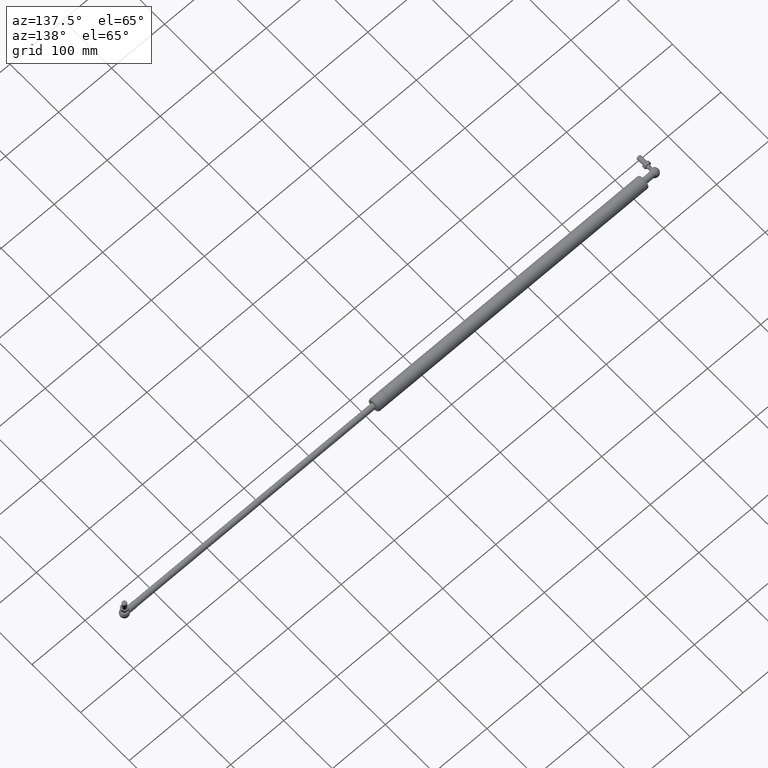
[diagram: clean part render]
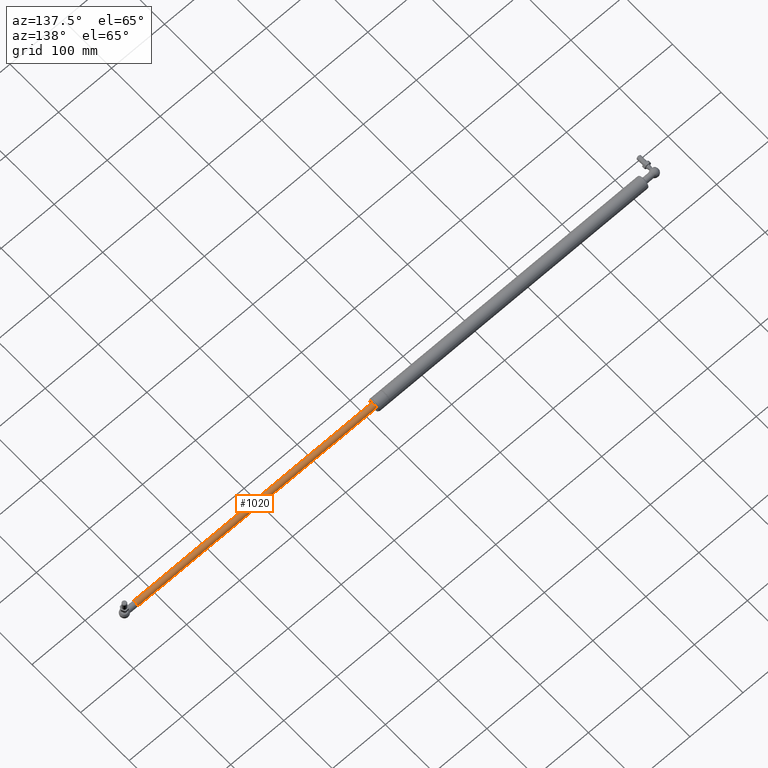
[diagram: same view with one face highlighted and labeled with its STEP entity id]
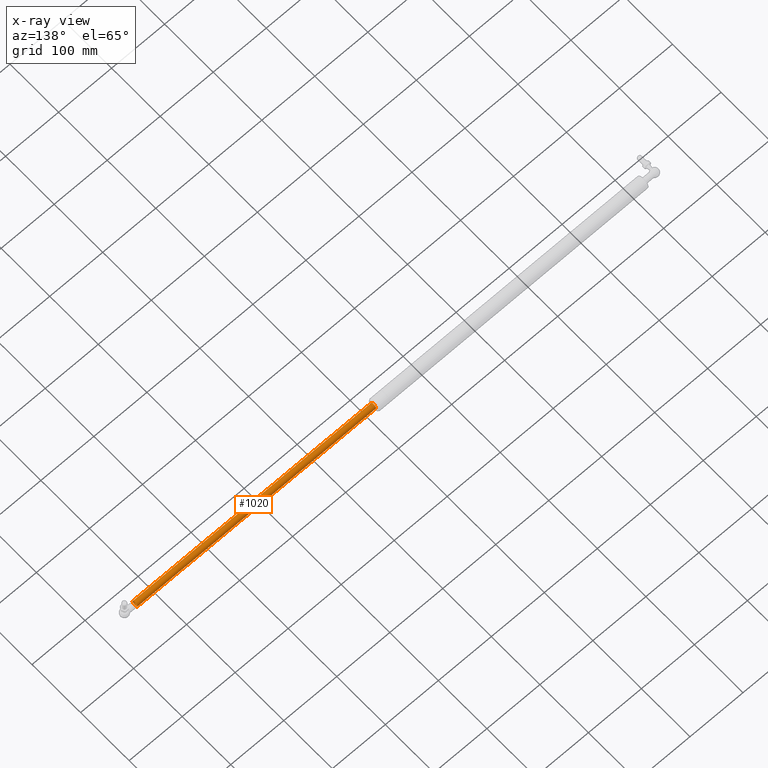
[diagram: x-ray of the same camera — body ghosted, the highlighted face saturated]
A machine part, auxiliary view. The second image highlights one B-rep face of the part: STEP entity #1020.
The next image is the same camera in x-ray: the body ghosted, the highlighted face saturated — about 0% of this face is hidden behind the body in this view.
In plain terms, the highlighted cylindrical surface (bore or boss wall) has radius 5 mm, axis along (1, -0, 0).
Its self-contained STEP definition (entity closure, byte-faithful):
#228=FACE_BOUND('',#367,.T.);
#258=CYLINDRICAL_SURFACE('',#1116,5.00000000000002);
#283=FACE_OUTER_BOUND('',#366,.T.);
#366=EDGE_LOOP('',(#751));
#367=EDGE_LOOP('',(#752));
#455=CIRCLE('',#1112,5.);
#457=CIRCLE('',#1117,5.00000000000003);
#506=VERTEX_POINT('',#1496);
#508=VERTEX_POINT('',#1503);
#605=EDGE_CURVE('',#506,#506,#455,.T.);
#607=EDGE_CURVE('',#508,#508,#457,.T.);
#751=ORIENTED_EDGE('',*,*,#607,.F.);
#752=ORIENTED_EDGE('',*,*,#605,.T.);
#1020=ADVANCED_FACE('',(#283,#228),#258,.T.);
#1112=AXIS2_PLACEMENT_3D('',#1497,#1258,#1259);
#1116=AXIS2_PLACEMENT_3D('',#1502,#1266,#1267);
#1117=AXIS2_PLACEMENT_3D('',#1504,#1268,#1269);
#1258=DIRECTION('center_axis',(-1.,0.,0.));
#1259=DIRECTION('ref_axis',(0.,0.,1.));
#1266=DIRECTION('center_axis',(-1.,0.,0.));
#1267=DIRECTION('ref_axis',(0.,0.,1.));
#1268=DIRECTION('center_axis',(-1.,0.,0.));
#1269=DIRECTION('ref_axis',(0.,0.,1.));
#1496=CARTESIAN_POINT('',(450.,0.,5.));
#1497=CARTESIAN_POINT('Origin',(450.,0.,0.));
#1502=CARTESIAN_POINT('Origin',(225.,0.,0.));
#1503=CARTESIAN_POINT('',(7.1959436245814E-32,0.,5.00000000000003));
#1504=CARTESIAN_POINT('Origin',(0.,0.,0.));